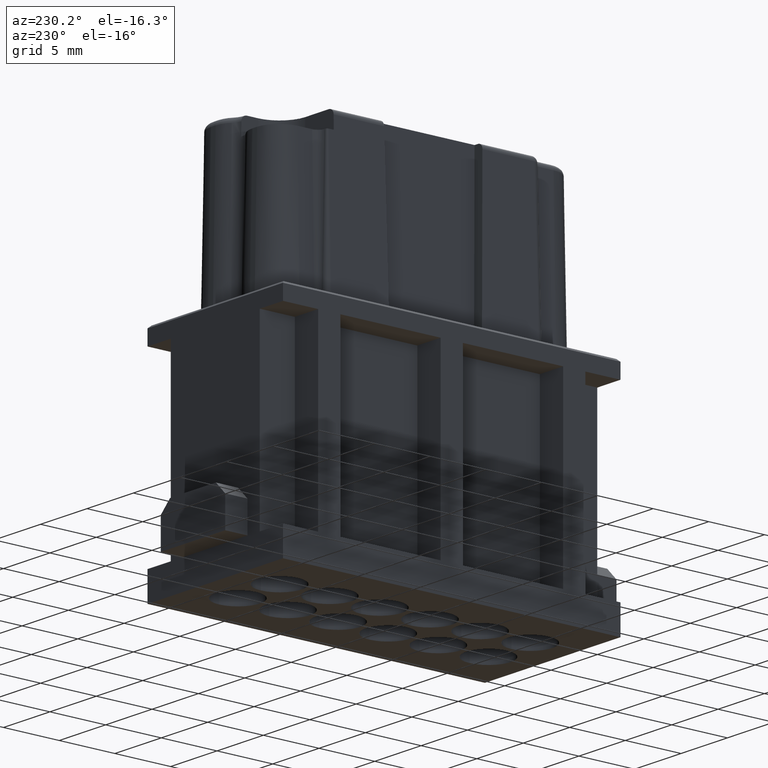
[diagram: clean part render]
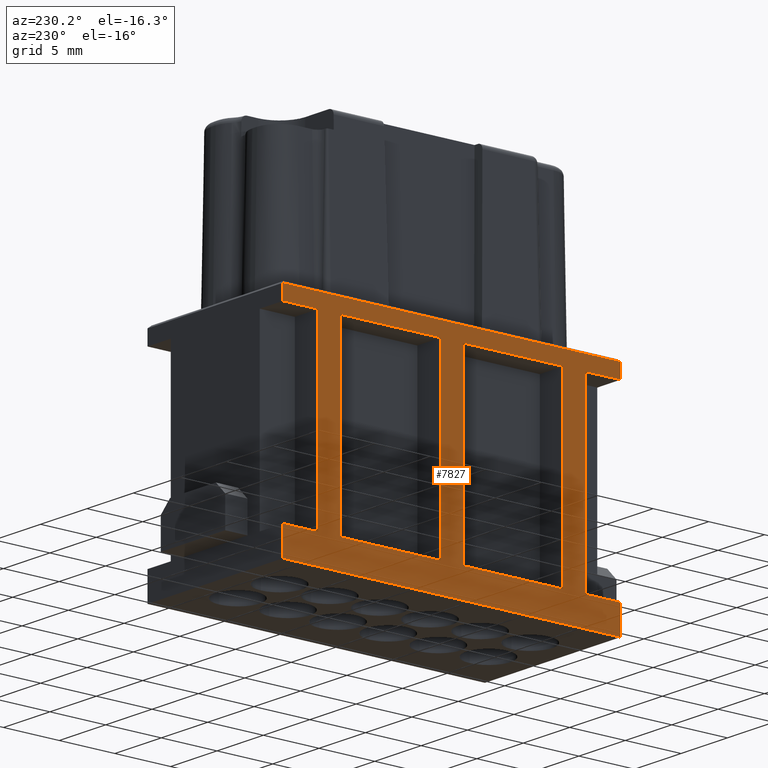
[diagram: same view with one face highlighted and labeled with its STEP entity id]
A machine part, auxiliary view. The second image highlights one B-rep face of the part: STEP entity #7827.
In plain terms, the highlighted planar face has unit normal (1, 0, 0).
Its self-contained STEP definition (entity closure, byte-faithful):
#873=DIRECTION('',(0.E0,-1.E0,0.E0));
#874=VECTOR('',#873,3.03E1);
#875=CARTESIAN_POINT('',(-7.3E0,1.515E1,1.98E1));
#876=LINE('',#875,#874);
#893=DIRECTION('',(0.E0,0.E0,-1.E0));
#894=VECTOR('',#893,1.3E0);
#895=CARTESIAN_POINT('',(-7.3E0,-1.515E1,1.98E1));
#896=LINE('',#895,#894);
#917=DIRECTION('',(0.E0,0.E0,-1.E0));
#918=VECTOR('',#917,2.5E0);
#919=CARTESIAN_POINT('',(-7.3E0,-1.515E1,2.5E0));
#920=LINE('',#919,#918);
#933=DIRECTION('',(0.E0,1.E0,0.E0));
#934=VECTOR('',#933,3.15E0);
#935=CARTESIAN_POINT('',(-7.3E0,-1.515E1,1.85E1));
#936=LINE('',#935,#934);
#945=DIRECTION('',(0.E0,-1.E0,0.E0));
#946=VECTOR('',#945,3.15E0);
#947=CARTESIAN_POINT('',(-7.3E0,1.515E1,1.85E1));
#948=LINE('',#947,#946);
#949=DIRECTION('',(0.E0,0.E0,-1.E0));
#950=VECTOR('',#949,1.3E0);
#951=CARTESIAN_POINT('',(-7.3E0,1.515E1,1.98E1));
#952=LINE('',#951,#950);
#953=DIRECTION('',(0.E0,0.E0,1.E0));
#954=VECTOR('',#953,1.6E1);
#955=CARTESIAN_POINT('',(-7.3E0,-1.2E1,2.5E0));
#956=LINE('',#955,#954);
#957=DIRECTION('',(0.E0,1.E0,0.E0));
#958=VECTOR('',#957,3.15E0);
#959=CARTESIAN_POINT('',(-7.3E0,-1.515E1,2.5E0));
#960=LINE('',#959,#958);
#961=DIRECTION('',(0.E0,0.E0,-1.E0));
#962=VECTOR('',#961,2.5E0);
#963=CARTESIAN_POINT('',(-7.3E0,1.515E1,2.5E0));
#964=LINE('',#963,#962);
#965=DIRECTION('',(0.E0,0.E0,-1.E0));
#966=VECTOR('',#965,1.6E1);
#967=CARTESIAN_POINT('',(-7.3E0,1.2E1,1.85E1));
#968=LINE('',#967,#966);
#969=DIRECTION('',(0.E0,0.E0,1.E0));
#970=VECTOR('',#969,1.6E1);
#971=CARTESIAN_POINT('',(-7.3E0,1.E1,2.5E0));
#972=LINE('',#971,#970);
#973=DIRECTION('',(0.E0,1.E0,0.E0));
#974=VECTOR('',#973,9.E0);
#975=CARTESIAN_POINT('',(-7.3E0,1.E0,2.5E0));
#976=LINE('',#975,#974);
#977=DIRECTION('',(0.E0,0.E0,-1.E0));
#978=VECTOR('',#977,1.6E1);
#979=CARTESIAN_POINT('',(-7.3E0,1.E0,1.85E1));
#980=LINE('',#979,#978);
#981=DIRECTION('',(0.E0,-1.E0,0.E0));
#982=VECTOR('',#981,9.E0);
#983=CARTESIAN_POINT('',(-7.3E0,1.E1,1.85E1));
#984=LINE('',#983,#982);
#985=DIRECTION('',(0.E0,0.E0,1.E0));
#986=VECTOR('',#985,1.6E1);
#987=CARTESIAN_POINT('',(-7.3E0,-1.E0,2.5E0));
#988=LINE('',#987,#986);
#989=DIRECTION('',(0.E0,1.E0,0.E0));
#990=VECTOR('',#989,9.E0);
#991=CARTESIAN_POINT('',(-7.3E0,-1.E1,2.5E0));
#992=LINE('',#991,#990);
#993=DIRECTION('',(0.E0,0.E0,-1.E0));
#994=VECTOR('',#993,1.6E1);
#995=CARTESIAN_POINT('',(-7.3E0,-1.E1,1.85E1));
#996=LINE('',#995,#994);
#997=DIRECTION('',(0.E0,-1.E0,0.E0));
#998=VECTOR('',#997,9.E0);
#999=CARTESIAN_POINT('',(-7.3E0,-1.E0,1.85E1));
#1000=LINE('',#999,#998);
#1017=DIRECTION('',(0.E0,-1.E0,0.E0));
#1018=VECTOR('',#1017,3.15E0);
#1019=CARTESIAN_POINT('',(-7.3E0,1.515E1,2.5E0));
#1020=LINE('',#1019,#1018);
#1169=DIRECTION('',(0.E0,1.E0,0.E0));
#1170=VECTOR('',#1169,3.03E1);
#1171=CARTESIAN_POINT('',(-7.3E0,-1.515E1,0.E0));
#1172=LINE('',#1171,#1170);
#4224=CARTESIAN_POINT('',(-7.3E0,1.515E1,1.98E1));
#4225=VERTEX_POINT('',#4224);
#4226=CARTESIAN_POINT('',(-7.3E0,-1.515E1,1.98E1));
#4227=VERTEX_POINT('',#4226);
#4228=CARTESIAN_POINT('',(-7.3E0,-1.515E1,1.85E1));
#4230=VERTEX_POINT('',#4228);
#4234=CARTESIAN_POINT('',(-7.3E0,-1.515E1,2.5E0));
#4235=VERTEX_POINT('',#4234);
#4236=CARTESIAN_POINT('',(-7.3E0,-1.515E1,0.E0));
#4237=VERTEX_POINT('',#4236);
#4260=CARTESIAN_POINT('',(-7.3E0,1.515E1,1.85E1));
#4261=CARTESIAN_POINT('',(-7.3E0,1.2E1,1.85E1));
#4262=VERTEX_POINT('',#4260);
#4263=VERTEX_POINT('',#4261);
#4264=CARTESIAN_POINT('',(-7.3E0,1.2E1,2.5E0));
#4265=VERTEX_POINT('',#4264);
#4266=CARTESIAN_POINT('',(-7.3E0,1.515E1,2.5E0));
#4267=VERTEX_POINT('',#4266);
#4268=CARTESIAN_POINT('',(-7.3E0,1.515E1,0.E0));
#4269=VERTEX_POINT('',#4268);
#4270=CARTESIAN_POINT('',(-7.3E0,-1.2E1,2.5E0));
#4271=VERTEX_POINT('',#4270);
#4272=CARTESIAN_POINT('',(-7.3E0,-1.2E1,1.85E1));
#4273=VERTEX_POINT('',#4272);
#4274=CARTESIAN_POINT('',(-7.3E0,1.E1,2.5E0));
#4275=CARTESIAN_POINT('',(-7.3E0,1.E1,1.85E1));
#4276=VERTEX_POINT('',#4274);
#4277=VERTEX_POINT('',#4275);
#4278=CARTESIAN_POINT('',(-7.3E0,1.E0,1.85E1));
#4279=VERTEX_POINT('',#4278);
#4280=CARTESIAN_POINT('',(-7.3E0,1.E0,2.5E0));
#4281=VERTEX_POINT('',#4280);
#4282=CARTESIAN_POINT('',(-7.3E0,-1.E0,2.5E0));
#4283=CARTESIAN_POINT('',(-7.3E0,-1.E0,1.85E1));
#4284=VERTEX_POINT('',#4282);
#4285=VERTEX_POINT('',#4283);
#4286=CARTESIAN_POINT('',(-7.3E0,-1.E1,1.85E1));
#4287=VERTEX_POINT('',#4286);
#4288=CARTESIAN_POINT('',(-7.3E0,-1.E1,2.5E0));
#4289=VERTEX_POINT('',#4288);
#7780=CARTESIAN_POINT('',(-7.3E0,1.515E1,3.4E1));
#7781=DIRECTION('',(1.E0,0.E0,0.E0));
#7782=DIRECTION('',(0.E0,1.E0,0.E0));
#7783=AXIS2_PLACEMENT_3D('',#7780,#7781,#7782);
#7784=PLANE('',#7783);
#7786=ORIENTED_EDGE('',*,*,#7785,.F.);
#7788=ORIENTED_EDGE('',*,*,#7787,.F.);
#7789=ORIENTED_EDGE('',*,*,#7700,.T.);
#7790=ORIENTED_EDGE('',*,*,#7727,.T.);
#7791=ORIENTED_EDGE('',*,*,#7770,.T.);
#7793=ORIENTED_EDGE('',*,*,#7792,.F.);
#7795=ORIENTED_EDGE('',*,*,#7794,.F.);
#7796=ORIENTED_EDGE('',*,*,#7742,.T.);
#7798=ORIENTED_EDGE('',*,*,#7797,.T.);
#7800=ORIENTED_EDGE('',*,*,#7799,.F.);
#7802=ORIENTED_EDGE('',*,*,#7801,.T.);
#7804=ORIENTED_EDGE('',*,*,#7803,.F.);
#7805=EDGE_LOOP('',(#7786,#7788,#7789,#7790,#7791,#7793,#7795,#7796,#7798,#7800,
#7802,#7804));
#7806=FACE_OUTER_BOUND('',#7805,.F.);
#7808=ORIENTED_EDGE('',*,*,#7807,.F.);
#7810=ORIENTED_EDGE('',*,*,#7809,.F.);
#7812=ORIENTED_EDGE('',*,*,#7811,.F.);
#7814=ORIENTED_EDGE('',*,*,#7813,.F.);
#7815=EDGE_LOOP('',(#7808,#7810,#7812,#7814));
#7816=FACE_BOUND('',#7815,.F.);
#7818=ORIENTED_EDGE('',*,*,#7817,.F.);
#7820=ORIENTED_EDGE('',*,*,#7819,.F.);
#7822=ORIENTED_EDGE('',*,*,#7821,.F.);
#7824=ORIENTED_EDGE('',*,*,#7823,.F.);
#7825=EDGE_LOOP('',(#7818,#7820,#7822,#7824));
#7826=FACE_BOUND('',#7825,.F.);
#7827=ADVANCED_FACE('',(#7806,#7816,#7826),#7784,.F.);
#7700=EDGE_CURVE('',#4225,#4227,#876,.T.);
#7727=EDGE_CURVE('',#4227,#4230,#896,.T.);
#7742=EDGE_CURVE('',#4235,#4237,#920,.T.);
#7770=EDGE_CURVE('',#4230,#4273,#936,.T.);
#7785=EDGE_CURVE('',#4262,#4263,#948,.T.);
#7787=EDGE_CURVE('',#4225,#4262,#952,.T.);
#7792=EDGE_CURVE('',#4271,#4273,#956,.T.);
#7794=EDGE_CURVE('',#4235,#4271,#960,.T.);
#7797=EDGE_CURVE('',#4237,#4269,#1172,.T.);
#7799=EDGE_CURVE('',#4267,#4269,#964,.T.);
#7801=EDGE_CURVE('',#4267,#4265,#1020,.T.);
#7803=EDGE_CURVE('',#4263,#4265,#968,.T.);
#7807=EDGE_CURVE('',#4276,#4277,#972,.T.);
#7809=EDGE_CURVE('',#4281,#4276,#976,.T.);
#7811=EDGE_CURVE('',#4279,#4281,#980,.T.);
#7813=EDGE_CURVE('',#4277,#4279,#984,.T.);
#7817=EDGE_CURVE('',#4284,#4285,#988,.T.);
#7819=EDGE_CURVE('',#4289,#4284,#992,.T.);
#7821=EDGE_CURVE('',#4287,#4289,#996,.T.);
#7823=EDGE_CURVE('',#4285,#4287,#1000,.T.);